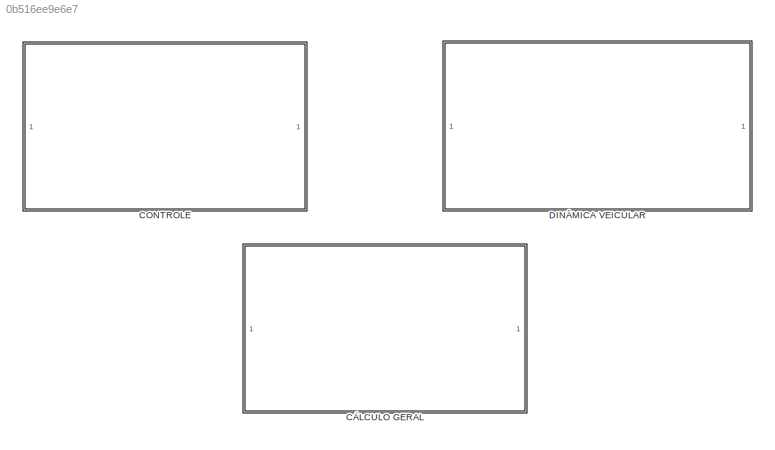
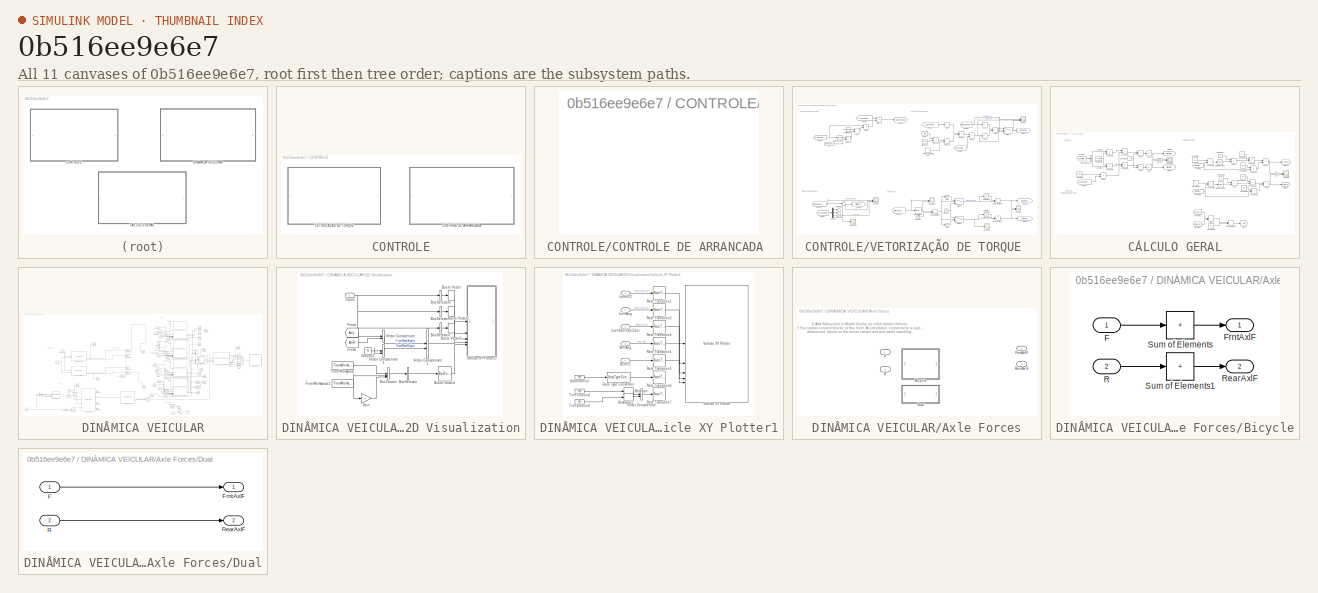
[diagram: thumbnail index - all 11 canvases of the model, root first then tree order]
MODEL slx_0b516ee9e6e7
KIND model
CONFIG AbsTol = auto
CONFIG EnableMultiTasking = off
CONFIG FixedStep = auto
CONFIG MaxStep = auto
CONFIG MinStep = auto
CONFIG RelTol = 1e-3
CONFIG SampleTimeConstraint = Unconstrained
CONFIG SolverName = VariableStepAuto
CONFIG StartTime = 0.0
CONFIG StopTime = 100
BLOCK [SubSystem] CONTROLE
BLOCK [SubSystem] CONTROLE/CONTROLE DE ARRANCADA 
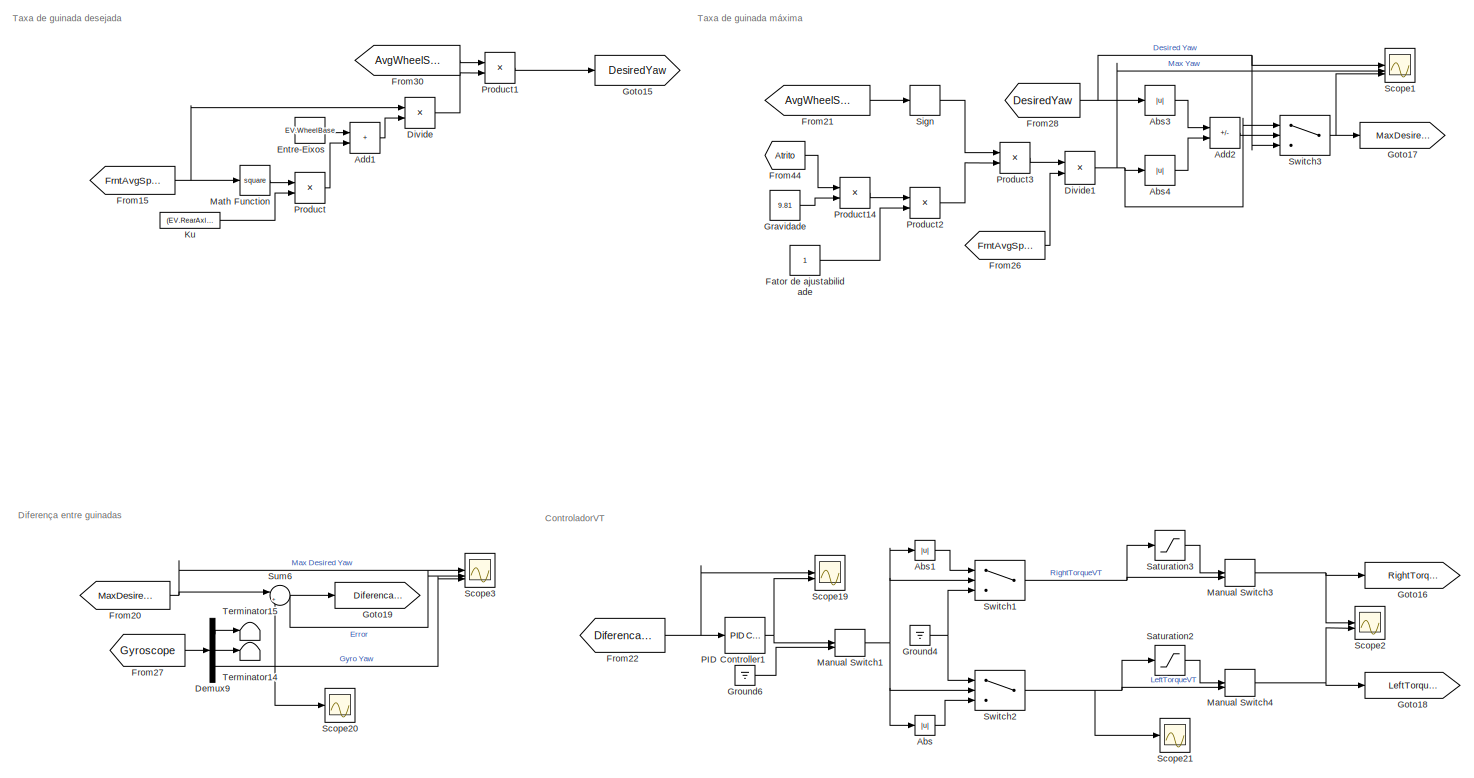
[diagram: CONTROLE/VETORIZAÇÃO DE TORQUE  - part 1/1, most of the canvas]
BLOCK [SubSystem] CONTROLE/VETORIZAÇÃO DE TORQUE 
BLOCK [Abs] CONTROLE/VETORIZAÇÃO DE TORQUE /Abs
  Commented = on
  SaturateOnIntegerOverflow = off
BLOCK [Abs] CONTROLE/VETORIZAÇÃO DE TORQUE /Abs1
  Commented = on
  SaturateOnIntegerOverflow = off
BLOCK [Abs] CONTROLE/VETORIZAÇÃO DE TORQUE /Abs3
  Commented = on
  SaturateOnIntegerOverflow = off
BLOCK [Abs] CONTROLE/VETORIZAÇÃO DE TORQUE /Abs4
  Commented = on
  SaturateOnIntegerOverflow = off
BLOCK [Sum] CONTROLE/VETORIZAÇÃO DE TORQUE /Add1
  Commented = on
  IconShape = rectangular
BLOCK [Sum] CONTROLE/VETORIZAÇÃO DE TORQUE /Add2
  Commented = on
  IconShape = rectangular
  Inputs = +-
BLOCK [Demux] CONTROLE/VETORIZAÇÃO DE TORQUE /Demux9
  Commented = on
  Outputs = 3
BLOCK [Product] CONTROLE/VETORIZAÇÃO DE TORQUE /Divide
  Commented = on
  Inputs = */
BLOCK [Product] CONTROLE/VETORIZAÇÃO DE TORQUE /Divide1
  Commented = on
  Inputs = */
BLOCK [Constant] CONTROLE/VETORIZAÇÃO DE TORQUE /Entre-Eixos
  Commented = on
  Value = EV.WheelBase
BLOCK [Constant] CONTROLE/VETORIZAÇÃO DE TORQUE /Fator de ajustabilidade
  Commented = on
  NameLocation = top
BLOCK [From] CONTROLE/VETORIZAÇÃO DE TORQUE /From15
  Commented = on
  GotoTag = FrntAvgSpeed
BLOCK [From] CONTROLE/VETORIZAÇÃO DE TORQUE /From20
  Commented = on
  GotoTag = MaxDesiredYaw
BLOCK [From] CONTROLE/VETORIZAÇÃO DE TORQUE /From21
  Commented = on
  GotoTag = AvgWheelSteer
BLOCK [From] CONTROLE/VETORIZAÇÃO DE TORQUE /From22
  Commented = on
  GotoTag = DiferencaYaws
BLOCK [From] CONTROLE/VETORIZAÇÃO DE TORQUE /From26
  Commented = on
  GotoTag = FrntAvgSpeed
BLOCK [From] CONTROLE/VETORIZAÇÃO DE TORQUE /From27
  Commented = on
  GotoTag = Gyroscope
BLOCK [From] CONTROLE/VETORIZAÇÃO DE TORQUE /From28
  Commented = on
  GotoTag = DesiredYaw
BLOCK [From] CONTROLE/VETORIZAÇÃO DE TORQUE /From30
  Commented = on
  GotoTag = AvgWheelSteer
BLOCK [From] CONTROLE/VETORIZAÇÃO DE TORQUE /From44
  Commented = on
  GotoTag = Atrito
BLOCK [Goto] CONTROLE/VETORIZAÇÃO DE TORQUE /Goto15
  Commented = on
  GotoTag = DesiredYaw
BLOCK [Goto] CONTROLE/VETORIZAÇÃO DE TORQUE /Goto16
  Commented = on
  GotoTag = RightTorqueVT
BLOCK [Goto] CONTROLE/VETORIZAÇÃO DE TORQUE /Goto17
  Commented = on
  GotoTag = MaxDesiredYaw
BLOCK [Goto] CONTROLE/VETORIZAÇÃO DE TORQUE /Goto18
  Commented = on
  GotoTag = LeftTorqueVT
BLOCK [Goto] CONTROLE/VETORIZAÇÃO DE TORQUE /Goto19
  Commented = on
  GotoTag = DiferencaYaws
BLOCK [Constant] CONTROLE/VETORIZAÇÃO DE TORQUE /Gravidade
  Commented = on
  NameLocation = top
  Value = 9.81
BLOCK [Ground] CONTROLE/VETORIZAÇÃO DE TORQUE /Ground4
  Commented = on
BLOCK [Ground] CONTROLE/VETORIZAÇÃO DE TORQUE /Ground6
  Commented = on
BLOCK [Constant] CONTROLE/VETORIZAÇÃO DE TORQUE /Ku
  Commented = on
  Value = (EV.RearAxlePositionfromCG*EV.Mass)/(EV.CornerStiffFront *EV.WheelBase)-(EV.FrontAxlePositionfromCG*EV.Mass)/(EV.CornerStiffRear*EV.WheelBase)
BLOCK [ManualSwitch] CONTROLE/VETORIZAÇÃO DE TORQUE /Manual Switch1
  Commented = on
BLOCK [ManualSwitch] CONTROLE/VETORIZAÇÃO DE TORQUE /Manual Switch3
  Commented = on
  CurrentSetting = 0
BLOCK [ManualSwitch] CONTROLE/VETORIZAÇÃO DE TORQUE /Manual Switch4
  Commented = on
  CurrentSetting = 0
BLOCK [Math] CONTROLE/VETORIZAÇÃO DE TORQUE /Math Function
  Commented = on
  Operator = square
BLOCK [Reference] CONTROLE/VETORIZAÇÃO DE TORQUE /PID Controller1  REF=slpidlib/PID Controller
  Commented = on
  SourceBlock = slpidlib/PID Controller
  SourceType = PID 1dof
BLOCK [Product] CONTROLE/VETORIZAÇÃO DE TORQUE /Product
  Commented = on
BLOCK [Product] CONTROLE/VETORIZAÇÃO DE TORQUE /Product1
  Commented = on
BLOCK [Product] CONTROLE/VETORIZAÇÃO DE TORQUE /Product14
  Commented = on
BLOCK [Product] CONTROLE/VETORIZAÇÃO DE TORQUE /Product2
  Commented = on
BLOCK [Product] CONTROLE/VETORIZAÇÃO DE TORQUE /Product3
  Commented = on
BLOCK [Saturate] CONTROLE/VETORIZAÇÃO DE TORQUE /Saturation2
  Commented = on
  LowerLimit = 0
  UpperLimit = 11.7
BLOCK [Saturate] CONTROLE/VETORIZAÇÃO DE TORQUE /Saturation3
  Commented = on
  LowerLimit = 0
  UpperLimit = 11.7
BLOCK [Scope] CONTROLE/VETORIZAÇÃO DE TORQUE /Scope1
  Commented = on
  Floating = off
  NumInputPorts = 3
  ScopeSpecificationString = Simulink.scopes.TimeScopeBlockCfg('CurrentConfiguration', extmgr.ConfigurationSet(extmgr.Configuration('Core','General UI',true),extmgr.Configuration('Core','Source UI',true),extmgr.Configuration('Sources','WiredSimulink',true,'DataLoggingVariableName','ScopeData1'),extmgr.Configuration('Visuals','Time Domain',true,'SerializedDisplays',{struct('MinYLimReal','-1.7533','MaxYLimReal','0.19481','YLabe...<+1483ch>
BLOCK [Scope] CONTROLE/VETORIZAÇÃO DE TORQUE /Scope19
  Commented = on
  Floating = off
  NumInputPorts = 2
  ScopeSpecificationString = Simulink.scopes.TimeScopeBlockCfg('CurrentConfiguration', extmgr.ConfigurationSet(extmgr.Configuration('Core','General UI',true),extmgr.Configuration('Core','Source UI',true),extmgr.Configuration('Sources','WiredSimulink',true,'DataLoggingVariableName','ScopeData4','DataLoggingSaveFormat','Array'),extmgr.Configuration('Visuals','Time Domain',true,'SerializedDisplays',{struct('MinYLimReal','-41.203...<+1540ch>
BLOCK [Scope] CONTROLE/VETORIZAÇÃO DE TORQUE /Scope2
  Commented = on
  Floating = off
  NumInputPorts = 2
  ScopeSpecificationString = Simulink.scopes.TimeScopeBlockCfg('CurrentConfiguration', extmgr.ConfigurationSet(extmgr.Configuration('Core','General UI',true),extmgr.Configuration('Core','Source UI',true),extmgr.Configuration('Sources','WiredSimulink',true,'DataLoggingVariableName','ScopeData5'),extmgr.Configuration('Visuals','Time Domain',true,'SerializedDisplays',{struct('MinYLimReal','-100828941240.88097','MaxYLimReal','907...<+1507ch>
BLOCK [Scope] CONTROLE/VETORIZAÇÃO DE TORQUE /Scope20
  Commented = on
  Floating = off
  NumInputPorts = 1
  ScopeSpecificationString = Simulink.scopes.TimeScopeBlockCfg('CurrentConfiguration', extmgr.ConfigurationSet(extmgr.Configuration('Core','General UI',true),extmgr.Configuration('Core','Source UI',true),extmgr.Configuration('Sources','WiredSimulink',true,'DataLoggingVariableName','ScopeData2','DataLogging',true,'DataLoggingSaveFormat','Array'),extmgr.Configuration('Visuals','Time Domain',true,'SerializedDisplays',{struct('Mi...<+1471ch>
BLOCK [Scope] CONTROLE/VETORIZAÇÃO DE TORQUE /Scope21
  Commented = on
  Floating = off
  NumInputPorts = 1
  ScopeSpecificationString = Simulink.scopes.TimeScopeBlockCfg('CurrentConfiguration', extmgr.ConfigurationSet(extmgr.Configuration('Core','General UI',true),extmgr.Configuration('Core','Source UI',true),extmgr.Configuration('Sources','WiredSimulink',true,'DataLoggingVariableName','ScopeData6','DataLogging',true,'DataLoggingSaveFormat','Array'),extmgr.Configuration('Visuals','Time Domain',true,'SerializedDisplays',{struct('Mi...<+1508ch>
BLOCK [Scope] CONTROLE/VETORIZAÇÃO DE TORQUE /Scope3
  Commented = on
  Floating = off
  NumInputPorts = 3
  ScopeSpecificationString = Simulink.scopes.TimeScopeBlockCfg('CurrentConfiguration', extmgr.ConfigurationSet(extmgr.Configuration('Core','General UI',true,'FigureColor',[1 1 1]),extmgr.Configuration('Core','Source UI',true),extmgr.Configuration('Sources','WiredSimulink',true,'DataLoggingVariableName','ScopeData3'),extmgr.Configuration('Visuals','Time Domain',true,'SerializedDisplays',{struct('MinYLimReal','-2.27941','MaxYLi...<+1623ch>
BLOCK [Signum] CONTROLE/VETORIZAÇÃO DE TORQUE /Sign
  Commented = on
BLOCK [Sum] CONTROLE/VETORIZAÇÃO DE TORQUE /Sum6
  Commented = on
  Inputs = |+-
BLOCK [Switch] CONTROLE/VETORIZAÇÃO DE TORQUE /Switch1
  Commented = on
  Criteria = u2 > Threshold
  InputSameDT = off
  SaturateOnIntegerOverflow = off
BLOCK [Switch] CONTROLE/VETORIZAÇÃO DE TORQUE /Switch2
  Commented = on
  InputSameDT = off
  SaturateOnIntegerOverflow = off
BLOCK [Switch] CONTROLE/VETORIZAÇÃO DE TORQUE /Switch3
  Commented = on
  Criteria = u2 > Threshold
  InputSameDT = off
  SaturateOnIntegerOverflow = off
BLOCK [Terminator] CONTROLE/VETORIZAÇÃO DE TORQUE /Terminator14
  Commented = on
BLOCK [Terminator] CONTROLE/VETORIZAÇÃO DE TORQUE /Terminator15
  Commented = on
BLOCK [SubSystem] CÁLCULO GERAL
BLOCK [Abs] CÁLCULO GERAL/Abs2
  Commented = on
  SaturateOnIntegerOverflow = off
BLOCK [Abs] CÁLCULO GERAL/Abs5
  Commented = on
  SaturateOnIntegerOverflow = off
BLOCK [Sum] CÁLCULO GERAL/Add3
  Commented = on
  IconShape = rectangular
  Inputs = +-
BLOCK [Sum] CÁLCULO GERAL/Add4
  Commented = on
  IconShape = rectangular
  Inputs = +-
BLOCK [Sum] CÁLCULO GERAL/Add5
  Commented = on
  IconShape = rectangular
  Inputs = +-
BLOCK [Sum] CÁLCULO GERAL/Add6
  Commented = on
  IconShape = rectangular
  Inputs = +-
BLOCK [Sum] CÁLCULO GERAL/Add7
  Commented = on
  IconShape = rectangular
  Inputs = +-
BLOCK [Sum] CÁLCULO GERAL/Add8
  Commented = on
  IconShape = rectangular
  Inputs = +-
BLOCK [BusSelector] CÁLCULO GERAL/Bus Selector21
  Commented = on
  OutputSignals = LeftMtrSpd,RghtMtrSpd
BLOCK [Constant] CÁLCULO GERAL/Constant10
  Commented = on
  Value = C3
BLOCK [Constant] CÁLCULO GERAL/Constant17
  Commented = on
BLOCK [Constant] CÁLCULO GERAL/Constant18
  Commented = on
  Value = C3
BLOCK [Constant] CÁLCULO GERAL/Constant19
  Commented = on
BLOCK [Constant] CÁLCULO GERAL/Constant20
  Commented = on
  Value = C1
BLOCK [Constant] CÁLCULO GERAL/Constant23
  Commented = on
  Value = -C2
BLOCK [Constant] CÁLCULO GERAL/Constant24
  Commented = on
  Value = 1.3
BLOCK [Constant] CÁLCULO GERAL/Constant4
  Commented = on
  Value = 2*pi/60
BLOCK [Constant] CÁLCULO GERAL/Constant5
  Commented = on
  Value = 0.2566
BLOCK [Constant] CÁLCULO GERAL/Constant6
  Commented = on
BLOCK [Constant] CÁLCULO GERAL/Constant7
  Commented = on
  Value = C1
BLOCK [Constant] CÁLCULO GERAL/Constant8
  Commented = on
  Value = -C2
BLOCK [Product] CÁLCULO GERAL/Divide2
  Commented = on
  Inputs = */
BLOCK [From] CÁLCULO GERAL/From32
  Commented = on
  GotoTag = Driveline
BLOCK [From] CÁLCULO GERAL/From37
  Commented = on
  GotoTag = FrntAvgSpeed
BLOCK [From] CÁLCULO GERAL/From38
  Commented = on
  GotoTag = Atrito_L
BLOCK [From] CÁLCULO GERAL/From39
  Commented = on
  GotoTag = SlipRatio_L
BLOCK [From] CÁLCULO GERAL/From40
  Commented = on
  GotoTag = SlipRatio_R
BLOCK [From] CÁLCULO GERAL/From41
  Commented = on
  GotoTag = Atrito_R
BLOCK [Goto] CÁLCULO GERAL/Goto24
  Commented = on
  GotoTag = SlipRatio_L
BLOCK [Goto] CÁLCULO GERAL/Goto25
  Commented = on
  GotoTag = SlipRatio_R
BLOCK [Goto] CÁLCULO GERAL/Goto26
  Commented = on
  GotoTag = Atrito_L
BLOCK [Goto] CÁLCULO GERAL/Goto27
  Commented = on
  GotoTag = Atrito_R
BLOCK [Goto] CÁLCULO GERAL/Goto28
  Commented = on
  GotoTag = Atrito
BLOCK [ManualSwitch] CÁLCULO GERAL/Manual Switch2
  Commented = on
  CurrentSetting = 0
BLOCK [Math] CÁLCULO GERAL/Math Function1
  Commented = on
BLOCK [Math] CÁLCULO GERAL/Math Function2
  Commented = on
BLOCK [MinMax] CÁLCULO GERAL/Min1
  Commented = on
  Inputs = 2
BLOCK [Product] CÁLCULO GERAL/Product10
  Commented = on
BLOCK [Product] CÁLCULO GERAL/Product11
  Commented = on
BLOCK [Product] CÁLCULO GERAL/Product12
  Commented = on
BLOCK [Product] CÁLCULO GERAL/Product13
  Commented = on
BLOCK [Product] CÁLCULO GERAL/Product4
  Commented = on
BLOCK [Product] CÁLCULO GERAL/Product5
  Commented = on
BLOCK [Product] CÁLCULO GERAL/Product6
  Commented = on
BLOCK [Product] CÁLCULO GERAL/Product7
  Commented = on
BLOCK [Product] CÁLCULO GERAL/Product8
  Commented = on
BLOCK [Product] CÁLCULO GERAL/Product9
  Commented = on
BLOCK [Scope] CÁLCULO GERAL/Scope18
  Commented = on
  Floating = off
  NumInputPorts = 2
  ScopeSpecificationString = Simulink.scopes.TimeScopeBlockCfg('CurrentConfiguration', extmgr.ConfigurationSet(extmgr.Configuration('Core','General UI',true),extmgr.Configuration('Core','Source UI',true),extmgr.Configuration('Sources','WiredSimulink',true,'DataLoggingVariableName','ScopeData7'),extmgr.Configuration('Visuals','Time Domain',true,'SerializedDisplays',{struct('MinYLimReal','-0.01332','MaxYLimReal','0.12067','YLab...<+1460ch>
BLOCK [Scope] CÁLCULO GERAL/Scope9
  Commented = on
  Floating = off
  NumInputPorts = 2
  ScopeSpecificationString = Simulink.scopes.TimeScopeBlockCfg('CurrentConfiguration', extmgr.ConfigurationSet(extmgr.Configuration('Core','General UI',true),extmgr.Configuration('Core','Source UI',true),extmgr.Configuration('Sources','WiredSimulink',true,'DataLoggingVariableName','ScopeData8'),extmgr.Configuration('Visuals','Time Domain',true,'SerializedDisplays',{struct('MinYLimReal','-0.13806','MaxYLimReal','1.26722','YLab...<+1454ch>
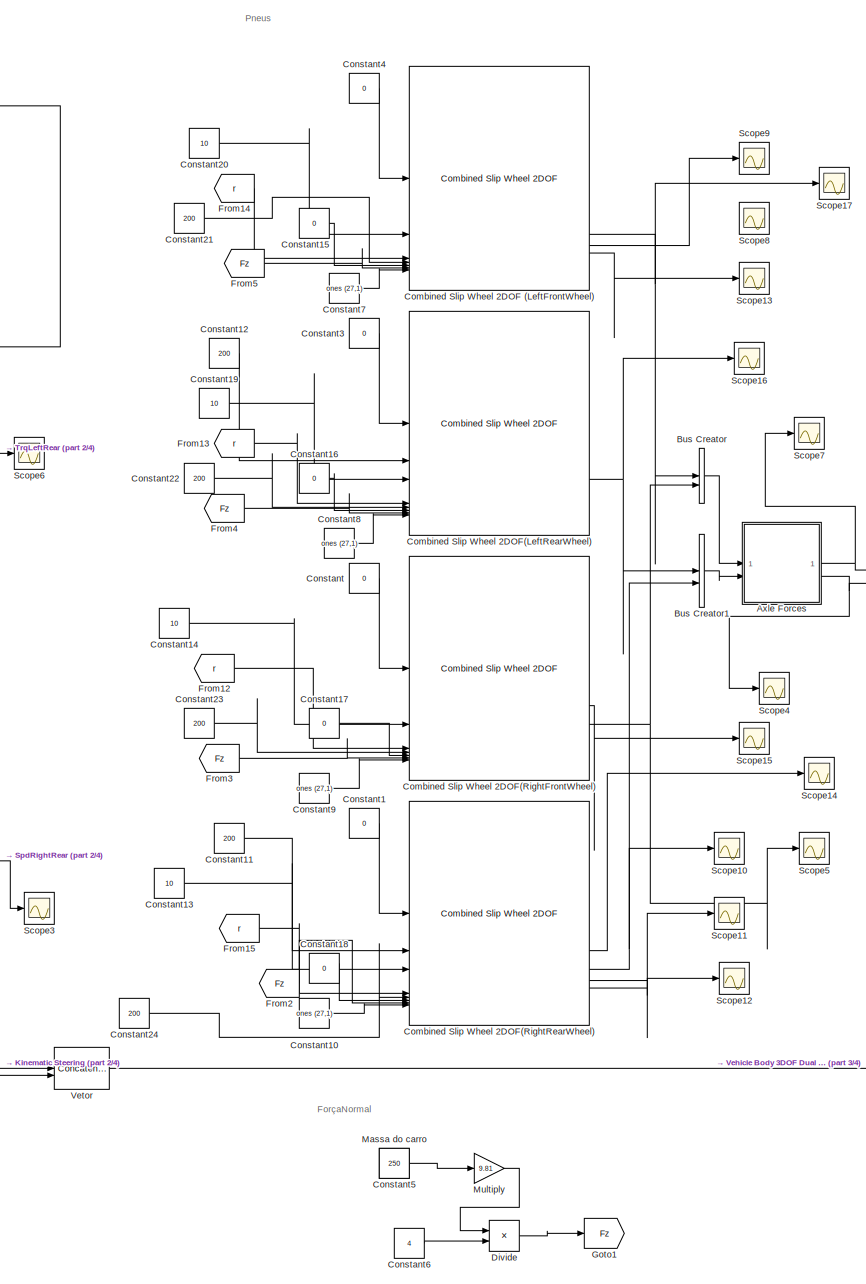
[diagram: DINÂMICA VEICULAR - part 1/4, center side, full height]
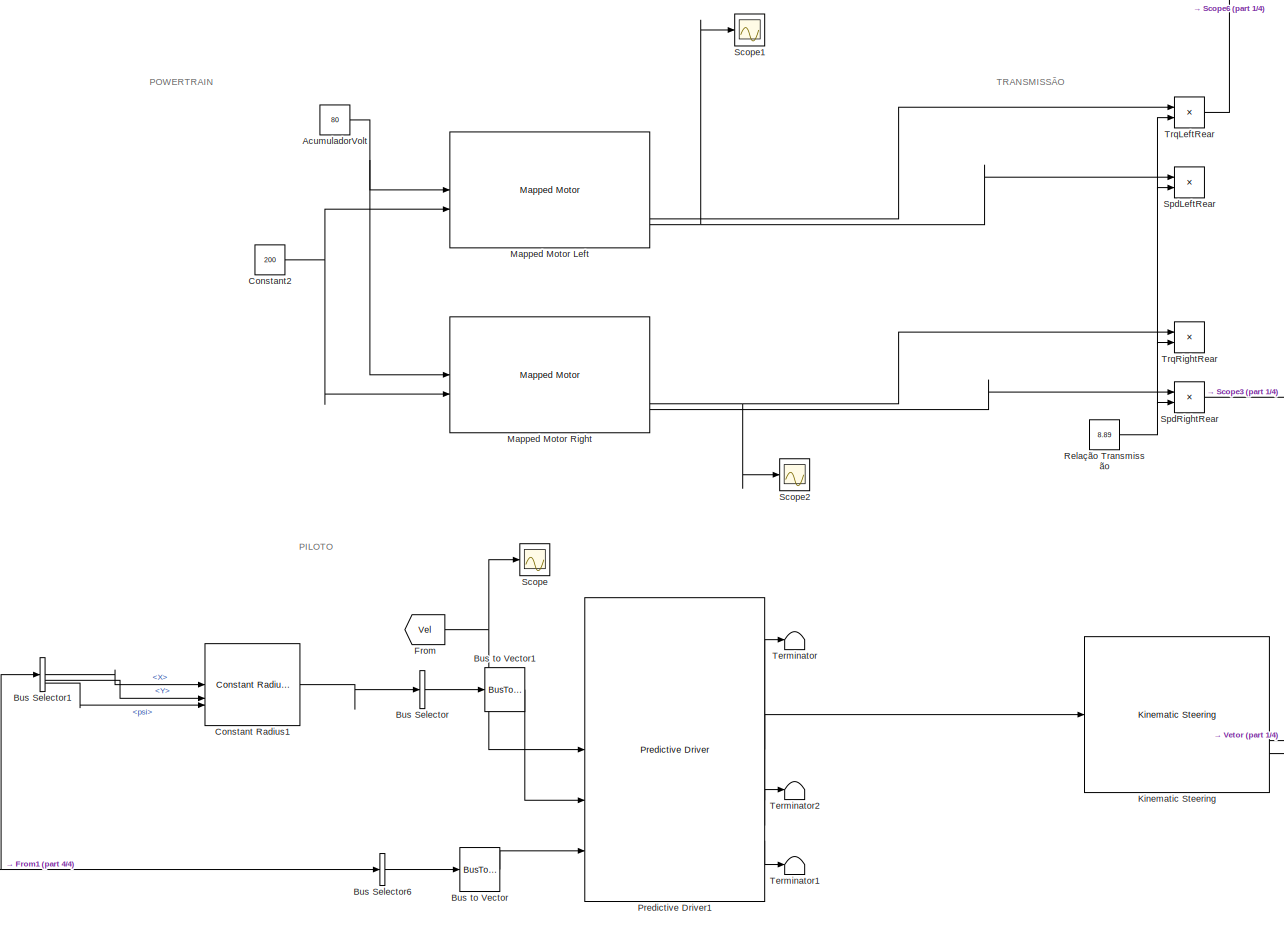
[diagram: DINÂMICA VEICULAR - part 2/4, middle left region]
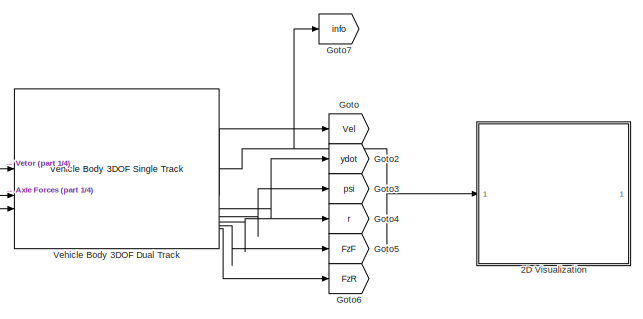
[diagram: DINÂMICA VEICULAR - part 3/4, middle right region]
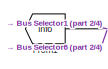
[diagram: DINÂMICA VEICULAR - part 4/4, bottom left region]
BLOCK [SubSystem] DINÂMICA VEICULAR
BLOCK [SubSystem] DINÂMICA VEICULAR/2D Visualization
BLOCK [BusCreator] DINÂMICA VEICULAR/2D Visualization/Bus Creator
  Commented = on
  DisplayOption = bar
  InheritFromInputs = on
  Inputs = 3
BLOCK [BusSelector] DINÂMICA VEICULAR/2D Visualization/Bus Selector
  Commented = on
  OutputAsBus = on
  OutputSignals = signal1,signal2,signal3
BLOCK [BusSelector] DINÂMICA VEICULAR/2D Visualization/Bus Selector1
  OutputAsBus = on
  OutputSignals = InertFrm.Cg.Ang.phi,InertFrm.Cg.Ang.theta,InertFrm.Cg.Ang.psi
BLOCK [BusSelector] DINÂMICA VEICULAR/2D Visualization/Bus Selector6
  OutputAsBus = on
  OutputSignals = InertFrm.Geom.Disp.X,InertFrm.Geom.Disp.Y,InertFrm.Geom.Disp.Z
BLOCK [BusSelector] DINÂMICA VEICULAR/2D Visualization/Bus Selector7
  OutputAsBus = on
  OutputSignals = InertFrm.Geom.Vel.Xdot,InertFrm.Geom.Vel.Ydot,InertFrm.Geom.Vel.Zdot
BLOCK [BusToVector] DINÂMICA VEICULAR/2D Visualization/Bus to Vector
BLOCK [BusToVector] DINÂMICA VEICULAR/2D Visualization/Bus to Vector1
BLOCK [BusToVector] DINÂMICA VEICULAR/2D Visualization/Bus to Vector2
BLOCK [BusToVector] DINÂMICA VEICULAR/2D Visualization/Bus to Vector4
  Commented = on
BLOCK [FromWorkspace] DINÂMICA VEICULAR/2D Visualization/From Workspace
  Commented = on
  VariableName = [tRef xRef]
BLOCK [FromWorkspace] DINÂMICA VEICULAR/2D Visualization/From Workspace1
  Commented = on
  VariableName = [tRef yRef]
BLOCK [From] DINÂMICA VEICULAR/2D Visualization/From1
  GotoTag = AnL
BLOCK [From] DINÂMICA VEICULAR/2D Visualization/From2
  GotoTag = AnR
BLOCK [Gain] DINÂMICA VEICULAR/2D Visualization/Gain
  Commented = on
  Gain = 0
BLOCK [Ground] DINÂMICA VEICULAR/2D Visualization/Ground3
BLOCK [Inport] DINÂMICA VEICULAR/2D Visualization/Inport
BLOCK [Concatenate] DINÂMICA VEICULAR/2D Visualization/Vector Concatenate
BLOCK [Concatenate] DINÂMICA VEICULAR/2D Visualization/Vector Concatenate1
BLOCK [Concatenate] DINÂMICA VEICULAR/2D Visualization/Vector Concatenate2
BLOCK [SubSystem] DINÂMICA VEICULAR/2D Visualization/Vehicle XY Plotter1
BLOCK [DataTypeConversion] DINÂMICA VEICULAR/2D Visualization/Vehicle XY Plotter1/Data Type Conversion
  OutDataTypeStr = double
  RndMeth = Floor
  SaturateOnIntegerOverflow = off
BLOCK [Inport] DINÂMICA VEICULAR/2D Visualization/Vehicle XY Plotter1/InertAng
  Port = 2
BLOCK [Inport] DINÂMICA VEICULAR/2D Visualization/Vehicle XY Plotter1/InertXYZ
BLOCK [Inport] DINÂMICA VEICULAR/2D Visualization/Vehicle XY Plotter1/InertXdotYdotZdot
  Port = 3
BLOCK [RateTransition] DINÂMICA VEICULAR/2D Visualization/Vehicle XY Plotter1/Rate Transition1
  Deterministic = off
  OutPortSampleTime = pltDT
BLOCK [RateTransition] DINÂMICA VEICULAR/2D Visualization/Vehicle XY Plotter1/Rate Transition2
  Deterministic = off
  OutPortSampleTime = pltDT
BLOCK [RateTransition] DINÂMICA VEICULAR/2D Visualization/Vehicle XY Plotter1/Rate Transition3
  Deterministic = off
  OutPortSampleTime = pltDT
BLOCK [RateTransition] DINÂMICA VEICULAR/2D Visualization/Vehicle XY Plotter1/Rate Transition4
  Deterministic = off
  OutPortSampleTime = pltDT
BLOCK [RateTransition] DINÂMICA VEICULAR/2D Visualization/Vehicle XY Plotter1/Rate Transition5
  Deterministic = off
  OutPortSampleTime = pltDT
BLOCK [RateTransition] DINÂMICA VEICULAR/2D Visualization/Vehicle XY Plotter1/Rate Transition6
  Deterministic = off
  OutPortSampleTime = pltDT
BLOCK [RateTransition] DINÂMICA VEICULAR/2D Visualization/Vehicle XY Plotter1/Rate Transition7
  Deterministic = off
  OutPortSampleTime = pltDT
BLOCK [Inport] DINÂMICA VEICULAR/2D Visualization/Vehicle XY Plotter1/RefXYZ
  Port = 5
BLOCK [Reshape] DINÂMICA VEICULAR/2D Visualization/Vehicle XY Plotter1/Reshape
  OutputDimensionality = Row vector (2-D)
BLOCK [Reshape] DINÂMICA VEICULAR/2D Visualization/Vehicle XY Plotter1/Reshape1
  OutputDimensionality = Row vector (2-D)
BLOCK [Ground] DINÂMICA VEICULAR/2D Visualization/Vehicle XY Plotter1/Stats Ground
BLOCK [Ground] DINÂMICA VEICULAR/2D Visualization/Vehicle XY Plotter1/TireFx Ground
BLOCK [Ground] DINÂMICA VEICULAR/2D Visualization/Vehicle XY Plotter1/TireFy Ground
BLOCK [Concatenate] DINÂMICA VEICULAR/2D Visualization/Vehicle XY Plotter1/Vector Concatenate
  Mode = Multidimensional array
BLOCK [Reference] DINÂMICA VEICULAR/2D Visualization/Vehicle XY Plotter1/Vehicle XY Plotter  REF=vehdynlibviscommon/Vehicle XY Plotter
  SourceBlock = vehdynlibviscommon/Vehicle XY Plotter
  SourceType = Vehicle XY Plotter
BLOCK [Inport] DINÂMICA VEICULAR/2D Visualization/Vehicle XY Plotter1/WhlAng
  Port = 4
BLOCK [Constant] DINÂMICA VEICULAR/AcumuladorVolt
  Value = 80
BLOCK [SubSystem] DINÂMICA VEICULAR/Axle Forces
  LabelModeActiveChoice = 1
  Variant = on
  VariantControlMode = label
BLOCK [SubSystem] DINÂMICA VEICULAR/Axle Forces/Bicycle
  VariantControl = 0
BLOCK [Inport] DINÂMICA VEICULAR/Axle Forces/Bicycle/F
BLOCK [Outport] DINÂMICA VEICULAR/Axle Forces/Bicycle/FrntAxlF
  Unit = N
  VectorParamsAs1DForOutWhenUnconnected = off
BLOCK [Inport] DINÂMICA VEICULAR/Axle Forces/Bicycle/R
  Port = 2
BLOCK [Outport] DINÂMICA VEICULAR/Axle Forces/Bicycle/RearAxlF
  Port = 2
  Unit = N
  VectorParamsAs1DForOutWhenUnconnected = off
BLOCK [Sum] DINÂMICA VEICULAR/Axle Forces/Bicycle/Sum of Elements
  IconShape = rectangular
  Inputs = +
BLOCK [Sum] DINÂMICA VEICULAR/Axle Forces/Bicycle/Sum of Elements1
  IconShape = rectangular
  Inputs = +
BLOCK [SubSystem] DINÂMICA VEICULAR/Axle Forces/Dual
  VariantControl = 1
BLOCK [Inport] DINÂMICA VEICULAR/Axle Forces/Dual/F
BLOCK [Outport] DINÂMICA VEICULAR/Axle Forces/Dual/FrntAxlF
  Unit = N
  VectorParamsAs1DForOutWhenUnconnected = off
BLOCK [Inport] DINÂMICA VEICULAR/Axle Forces/Dual/R
  Port = 2
BLOCK [Outport] DINÂMICA VEICULAR/Axle Forces/Dual/RearAxlF
  Port = 2
  Unit = N
  VectorParamsAs1DForOutWhenUnconnected = off
BLOCK [Inport] DINÂMICA VEICULAR/Axle Forces/F
BLOCK [Outport] DINÂMICA VEICULAR/Axle Forces/FrntAxlF
  Unit = N
  VectorParamsAs1DForOutWhenUnconnected = off
BLOCK [Inport] DINÂMICA VEICULAR/Axle Forces/R
  Port = 2
BLOCK [Outport] DINÂMICA VEICULAR/Axle Forces/RearAxlF
  Port = 2
  Unit = N
  VectorParamsAs1DForOutWhenUnconnected = off
BLOCK [BusCreator] DINÂMICA VEICULAR/Bus Creator
  DisplayOption = bar
  InheritFromInputs = on
  Inputs = 2
BLOCK [BusCreator] DINÂMICA VEICULAR/Bus Creator1
  DisplayOption = bar
  InheritFromInputs = on
  Inputs = 2
BLOCK [BusSelector] DINÂMICA VEICULAR/Bus Selector
  OutputAsBus = on
  OutputSignals = XRef,YRef,PhiRef
BLOCK [BusSelector] DINÂMICA VEICULAR/Bus Selector1
  OutputSignals = InertFrm.Cg.Disp.X,InertFrm.Cg.Disp.Y,InertFrm.Cg.Ang.psi
BLOCK [BusSelector] DINÂMICA VEICULAR/Bus Selector6
  OutputAsBus = on
  OutputSignals = InertFrm.Cg.Disp.X,InertFrm.Cg.Disp.Y,InertFrm.Cg.Disp.Z
BLOCK [BusToVector] DINÂMICA VEICULAR/Bus to Vector
BLOCK [BusToVector] DINÂMICA VEICULAR/Bus to Vector1
BLOCK [Reference] DINÂMICA VEICULAR/Combined Slip Wheel 2DOF (LeftFrontWheel)  REF=vehdynlibtire/Combined Slip Wheel 2DOF
  SourceBlock = vehdynlibtire/Combined Slip Wheel 2DOF
  SourceType = Combined Slip Wheel 2DOF
BLOCK [Reference] DINÂMICA VEICULAR/Combined Slip Wheel 2DOF(LeftRearWheel)  REF=vehdynlibtire/Combined Slip Wheel 2DOF
  SourceBlock = vehdynlibtire/Combined Slip Wheel 2DOF
  SourceType = Combined Slip Wheel 2DOF
BLOCK [Reference] DINÂMICA VEICULAR/Combined Slip Wheel 2DOF(RightFrontWheel)  REF=vehdynlibtire/Combined Slip Wheel 2DOF
  SourceBlock = vehdynlibtire/Combined Slip Wheel 2DOF
  SourceType = Combined Slip Wheel 2DOF
BLOCK [Reference] DINÂMICA VEICULAR/Combined Slip Wheel 2DOF(RightRearWheel)  REF=vehdynlibtire/Combined Slip Wheel 2DOF
  SourceBlock = vehdynlibtire/Combined Slip Wheel 2DOF
  SourceType = Combined Slip Wheel 2DOF
BLOCK [Constant] DINÂMICA VEICULAR/Constant
  Value = 0
BLOCK [Reference] DINÂMICA VEICULAR/Constant Radius1  REF=vehdynlibscenariocommon/Constant Radius Signal Input
  LibrarySourceBlock = vehdynlibscenario/Constant Radius
  SourceBlock = vehdynlibscenariocommon/Constant Radius Signal Input
  SourceType = Constant Radius
BLOCK [Constant] DINÂMICA VEICULAR/Constant1
  Value = 0
BLOCK [Constant] DINÂMICA VEICULAR/Constant10
  Value = ones (27,1)
BLOCK [Constant] DINÂMICA VEICULAR/Constant11
  Value = 200
BLOCK [Constant] DINÂMICA VEICULAR/Constant12
  Value = 200
BLOCK [Constant] DINÂMICA VEICULAR/Constant13
  Value = 10
BLOCK [Constant] DINÂMICA VEICULAR/Constant14
  Value = 10
BLOCK [Constant] DINÂMICA VEICULAR/Constant15
  Value = 0
BLOCK [Constant] DINÂMICA VEICULAR/Constant16
  Value = 0
BLOCK [Constant] DINÂMICA VEICULAR/Constant17
  Value = 0
BLOCK [Constant] DINÂMICA VEICULAR/Constant18
  Value = 0
BLOCK [Constant] DINÂMICA VEICULAR/Constant19
  Value = 10
BLOCK [Constant] DINÂMICA VEICULAR/Constant2
  Value = 200
BLOCK [Constant] DINÂMICA VEICULAR/Constant20
  Value = 10
BLOCK [Constant] DINÂMICA VEICULAR/Constant21
  Value = 200
BLOCK [Constant] DINÂMICA VEICULAR/Constant22
  Value = 200
BLOCK [Constant] DINÂMICA VEICULAR/Constant23
  Value = 200
BLOCK [Constant] DINÂMICA VEICULAR/Constant24
  Value = 200
BLOCK [Constant] DINÂMICA VEICULAR/Constant3
  Value = 0
BLOCK [Constant] DINÂMICA VEICULAR/Constant4
  Value = 0
BLOCK [Constant] DINÂMICA VEICULAR/Constant5
  Value = 300
BLOCK [Constant] DINÂMICA VEICULAR/Constant6
  Value = 4
BLOCK [Constant] DINÂMICA VEICULAR/Constant7
  Value = ones (27,1)
BLOCK [Constant] DINÂMICA VEICULAR/Constant8
  Value = ones (27,1)
BLOCK [Constant] DINÂMICA VEICULAR/Constant9
  Value = ones (27,1)
BLOCK [Product] DINÂMICA VEICULAR/Divide
  Inputs = */
BLOCK [From] DINÂMICA VEICULAR/From
  GotoTag = Vel
BLOCK [From] DINÂMICA VEICULAR/From1
  GotoTag = info
BLOCK [From] DINÂMICA VEICULAR/From12
  GotoTag = r
BLOCK [From] DINÂMICA VEICULAR/From13
  GotoTag = r
BLOCK [From] DINÂMICA VEICULAR/From14
  GotoTag = r
BLOCK [From] DINÂMICA VEICULAR/From15
  GotoTag = r
BLOCK [From] DINÂMICA VEICULAR/From2
  GotoTag = Fz
BLOCK [From] DINÂMICA VEICULAR/From3
  GotoTag = Fz
BLOCK [From] DINÂMICA VEICULAR/From4
  GotoTag = Fz
BLOCK [From] DINÂMICA VEICULAR/From5
  GotoTag = Fz
BLOCK [Goto] DINÂMICA VEICULAR/Goto
  GotoTag = Vel
BLOCK [Goto] DINÂMICA VEICULAR/Goto1
  GotoTag = Fz
BLOCK [Goto] DINÂMICA VEICULAR/Goto2
  GotoTag = ydot
BLOCK [Goto] DINÂMICA VEICULAR/Goto3
  GotoTag = psi
BLOCK [Goto] DINÂMICA VEICULAR/Goto4
  GotoTag = r
BLOCK [Goto] DINÂMICA VEICULAR/Goto5
  GotoTag = FzF
BLOCK [Goto] DINÂMICA VEICULAR/Goto6
  GotoTag = FzR
BLOCK [Goto] DINÂMICA VEICULAR/Goto7
  GotoTag = info
BLOCK [Reference] DINÂMICA VEICULAR/Kinematic Steering  REF=vehdynlibsteering/Kinematic Steering
  SourceBlock = vehdynlibsteering/Kinematic Steering
  SourceType = Kinematic Steering
BLOCK [Reference] DINÂMICA VEICULAR/Mapped Motor Left  REF=autolibmappedmotor/Mapped Motor
  LibrarySourceBlock = vdynlib/Powertrain/Propulsion/Mapped Motor
  SourceBlock = autolibmappedmotor/Mapped Motor
  SourceType = MappedMotor
BLOCK [Reference] DINÂMICA VEICULAR/Mapped Motor Right  REF=autolibmappedmotor/Mapped Motor
  LibrarySourceBlock = vdynlib/Powertrain/Propulsion/Mapped Motor
  SourceBlock = autolibmappedmotor/Mapped Motor
  SourceType = MappedMotor
BLOCK [Constant] DINÂMICA VEICULAR/Massa do carro
  Value = 250
BLOCK [Gain] DINÂMICA VEICULAR/Multiply
  Gain = 9.81
BLOCK [Reference] DINÂMICA VEICULAR/Predictive Driver1  REF=vehdynlibdriver/Predictive Driver
  SourceBlock = vehdynlibdriver/Predictive Driver
  SourceType = Predictive Driver
BLOCK [Constant] DINÂMICA VEICULAR/Relação Transmissão
  Value = 8.89
BLOCK [Scope] DINÂMICA VEICULAR/Scope
  Floating = off
  NumInputPorts = 1
  ScopeSpecificationString = Simulink.scopes.TimeScopeBlockCfg('CurrentConfiguration', extmgr.ConfigurationSet(extmgr.Configuration('Core','General UI',true),extmgr.Configuration('Core','Source UI',true),extmgr.Configuration('Sources','WiredSimulink',true),extmgr.Configuration('Visuals','Time Domain',true,'SerializedDisplays',{struct('MinYLimReal','-1.00000','MaxYLimReal','1.00000','YLabelReal','','MinYLimMag','0.00000','MaxY...<+1428ch>
BLOCK [Scope] DINÂMICA VEICULAR/Scope1
  Floating = off
  NumInputPorts = 1
  ScopeSpecificationString = Simulink.scopes.TimeScopeBlockCfg('CurrentConfiguration', extmgr.ConfigurationSet(extmgr.Configuration('Core','General UI',true),extmgr.Configuration('Core','Source UI',true),extmgr.Configuration('Sources','WiredSimulink',true,'DataLoggingVariableName','ScopeData1'),extmgr.Configuration('Visuals','Time Domain',true,'SerializedDisplays',{struct('MinYLimReal','-380927.5072','MaxYLimReal','3428347.56...<+1509ch>
BLOCK [Scope] DINÂMICA VEICULAR/Scope10
  Floating = off
  NumInputPorts = 1
  ScopeSpecificationString = Simulink.scopes.TimeScopeBlockCfg('CurrentConfiguration', extmgr.ConfigurationSet(extmgr.Configuration('Core','General UI',true),extmgr.Configuration('Core','Source UI',true),extmgr.Configuration('Sources','WiredSimulink',true,'DataLoggingVariableName','ScopeData3'),extmgr.Configuration('Visuals','Time Domain',true,'SerializedDisplays',{struct('MinYLimReal','-1031.16745','MaxYLimReal','892.84884',...<+1537ch>
BLOCK [Scope] DINÂMICA VEICULAR/Scope11
  Floating = off
  NumInputPorts = 1
  ScopeSpecificationString = Simulink.scopes.TimeScopeBlockCfg('CurrentConfiguration', extmgr.ConfigurationSet(extmgr.Configuration('Core','General UI',true),extmgr.Configuration('Core','Source UI',true),extmgr.Configuration('Sources','WiredSimulink',true,'DataLoggingVariableName','ScopeData4'),extmgr.Configuration('Visuals','Time Domain',true,'SerializedDisplays',{struct('MinYLimReal','-1.00000','MaxYLimReal','1.00000','YLab...<+1448ch>
BLOCK [Scope] DINÂMICA VEICULAR/Scope12
  Floating = off
  NumInputPorts = 1
  ScopeSpecificationString = Simulink.scopes.TimeScopeBlockCfg('CurrentConfiguration', extmgr.ConfigurationSet(extmgr.Configuration('Core','General UI',true),extmgr.Configuration('Core','Source UI',true),extmgr.Configuration('Sources','WiredSimulink',true,'DataLoggingVariableName','ScopeData5'),extmgr.Configuration('Visuals','Time Domain',true,'SerializedDisplays',{struct('MinYLimReal','513.125','MaxYLimReal','713.125','YLabe...<+1524ch>
BLOCK [Scope] DINÂMICA VEICULAR/Scope13
  Floating = off
  NumInputPorts = 1
  ScopeSpecificationString = Simulink.scopes.TimeScopeBlockCfg('CurrentConfiguration', extmgr.ConfigurationSet(extmgr.Configuration('Core','General UI',true),extmgr.Configuration('Core','Source UI',true),extmgr.Configuration('Sources','WiredSimulink',true,'DataLoggingVariableName','ScopeData6'),extmgr.Configuration('Visuals','Time Domain',true,'SerializedDisplays',{struct('MinYLimReal','513.125','MaxYLimReal','713.125','YLabe...<+1551ch>
BLOCK [Scope] DINÂMICA VEICULAR/Scope14
  Floating = off
  NumInputPorts = 1
  ScopeSpecificationString = Simulink.scopes.TimeScopeBlockCfg('CurrentConfiguration', extmgr.ConfigurationSet(extmgr.Configuration('Core','General UI',true),extmgr.Configuration('Core','Source UI',true),extmgr.Configuration('Sources','WiredSimulink',true,'DataLoggingVariableName','ScopeData7'),extmgr.Configuration('Visuals','Time Domain',true,'SerializedDisplays',{struct('MinYLimReal','-6.23707','MaxYLimReal','56.13367','YLa...<+1524ch>
BLOCK [Scope] DINÂMICA VEICULAR/Scope15
  Floating = off
  NumInputPorts = 1
  ScopeSpecificationString = Simulink.scopes.TimeScopeBlockCfg('CurrentConfiguration', extmgr.ConfigurationSet(extmgr.Configuration('Core','General UI',true),extmgr.Configuration('Core','Source UI',true),extmgr.Configuration('Sources','WiredSimulink',true,'DataLoggingVariableName','ScopeData8'),extmgr.Configuration('Visuals','Time Domain',true,'SerializedDisplays',{struct('MinYLimReal','-4.16285','MaxYLimReal','37.46561','YLa...<+1525ch>
BLOCK [Scope] DINÂMICA VEICULAR/Scope16
  Floating = off
  NumInputPorts = 1
  ScopeSpecificationString = Simulink.scopes.TimeScopeBlockCfg('CurrentConfiguration', extmgr.ConfigurationSet(extmgr.Configuration('Core','General UI',true),extmgr.Configuration('Core','Source UI',true),extmgr.Configuration('Sources','WiredSimulink',true,'DataLoggingVariableName','ScopeData3'),extmgr.Configuration('Visuals','Time Domain',true,'SerializedDisplays',{struct('MinYLimReal','-1004.0462','MaxYLimReal','901.25544','...<+1559ch>
BLOCK [Scope] DINÂMICA VEICULAR/Scope17
  Floating = off
  NumInputPorts = 1
  ScopeSpecificationString = Simulink.scopes.TimeScopeBlockCfg('CurrentConfiguration', extmgr.ConfigurationSet(extmgr.Configuration('Core','General UI',true),extmgr.Configuration('Core','Source UI',true),extmgr.Configuration('Sources','WiredSimulink',true,'DataLoggingVariableName','ScopeData4'),extmgr.Configuration('Visuals','Time Domain',true),extmgr.Configuration('Tools','Plot Navigation',true),extmgr.Configuration('Tools',...<+40ch>
BLOCK [Scope] DINÂMICA VEICULAR/Scope2
  Floating = off
  NumInputPorts = 1
  ScopeSpecificationString = Simulink.scopes.TimeScopeBlockCfg('CurrentConfiguration', extmgr.ConfigurationSet(extmgr.Configuration('Core','General UI',true),extmgr.Configuration('Core','Source UI',true),extmgr.Configuration('Sources','WiredSimulink',true,'DataLoggingVariableName','ScopeData2'),extmgr.Configuration('Visuals','Time Domain',true,'SerializedDisplays',{struct('MinYLimReal','-4.07642','MaxYLimReal','36.68776','YLa...<+1500ch>
BLOCK [Scope] DINÂMICA VEICULAR/Scope3
  Floating = off
  NumInputPorts = 1
  ScopeSpecificationString = Simulink.scopes.TimeScopeBlockCfg('CurrentConfiguration', extmgr.ConfigurationSet(extmgr.Configuration('Core','General UI',true),extmgr.Configuration('Core','Source UI',true),extmgr.Configuration('Sources','WiredSimulink',true,'DataLoggingVariableName','ScopeData1'),extmgr.Configuration('Visuals','Time Domain',true,'SerializedDisplays',{struct('MinYLimReal','-45264.08829','MaxYLimReal','407376.794...<+1494ch>
BLOCK [Scope] DINÂMICA VEICULAR/Scope4
  Floating = off
  NumInputPorts = 1
  ScopeSpecificationString = Simulink.scopes.TimeScopeBlockCfg('CurrentConfiguration', extmgr.ConfigurationSet(extmgr.Configuration('Core','General UI',true),extmgr.Configuration('Core','Source UI',true),extmgr.Configuration('Sources','WiredSimulink',true,'DataLoggingVariableName','ScopeData4'),extmgr.Configuration('Visuals','Time Domain',true,'SerializedDisplays',{struct('MinYLimReal','-1032.45221','MaxYLimReal','904.41166',...<+1887ch>
BLOCK [Scope] DINÂMICA VEICULAR/Scope5
  Floating = off
  NumInputPorts = 1
  ScopeSpecificationString = Simulink.scopes.TimeScopeBlockCfg('CurrentConfiguration', extmgr.ConfigurationSet(extmgr.Configuration('Core','General UI',true),extmgr.Configuration('Core','Source UI',true),extmgr.Configuration('Sources','WiredSimulink',true,'DataLoggingVariableName','ScopeData2'),extmgr.Configuration('Visuals','Time Domain',true),extmgr.Configuration('Tools','Plot Navigation',true),extmgr.Configuration('Tools',...<+40ch>
BLOCK [Scope] DINÂMICA VEICULAR/Scope6
  Floating = off
  NumInputPorts = 1
  ScopeSpecificationString = Simulink.scopes.TimeScopeBlockCfg('CurrentConfiguration', extmgr.ConfigurationSet(extmgr.Configuration('Core','General UI',true),extmgr.Configuration('Core','Source UI',true),extmgr.Configuration('Sources','WiredSimulink',true,'DataLoggingVariableName','ScopeData6'),extmgr.Configuration('Visuals','Time Domain',true,'SerializedDisplays',{struct('MinYLimReal','-36.23935','MaxYLimReal','326.15416','Y...<+1496ch>
BLOCK [Scope] DINÂMICA VEICULAR/Scope7
  Floating = off
  NumInputPorts = 1
  ScopeSpecificationString = Simulink.scopes.TimeScopeBlockCfg('CurrentConfiguration', extmgr.ConfigurationSet(extmgr.Configuration('Core','General UI',true),extmgr.Configuration('Core','Source UI',true),extmgr.Configuration('Sources','WiredSimulink',true,'DataLoggingVariableName','ScopeData7'),extmgr.Configuration('Visuals','Time Domain',true,'SerializedDisplays',{struct('MinYLimReal','-904.32544','MaxYLimReal','100.4806','Y...<+1879ch>
BLOCK [Scope] DINÂMICA VEICULAR/Scope8
  Floating = off
  NumInputPorts = 1
  ScopeSpecificationString = Simulink.scopes.TimeScopeBlockCfg('CurrentConfiguration', extmgr.ConfigurationSet(extmgr.Configuration('Core','General UI',true),extmgr.Configuration('Core','Source UI',true),extmgr.Configuration('Sources','WiredSimulink',true,'DataLoggingVariableName','ScopeData1'),extmgr.Configuration('Visuals','Time Domain',true,'SerializedDisplays',{struct('MinYLimReal','-1.00000','MaxYLimReal','1.00000','YLab...<+1492ch>
BLOCK [Scope] DINÂMICA VEICULAR/Scope9
  Floating = off
  NumInputPorts = 1
  ScopeSpecificationString = Simulink.scopes.TimeScopeBlockCfg('CurrentConfiguration', extmgr.ConfigurationSet(extmgr.Configuration('Core','General UI',true),extmgr.Configuration('Core','Source UI',true),extmgr.Configuration('Sources','WiredSimulink',true,'DataLoggingVariableName','ScopeData2'),extmgr.Configuration('Visuals','Time Domain',true,'SerializedDisplays',{struct('MinYLimReal','-41.00163','MaxYLimReal','4.71686','YLa...<+1522ch>
BLOCK [Product] DINÂMICA VEICULAR/SpdLeftRear
  Inputs = */
BLOCK [Product] DINÂMICA VEICULAR/SpdRightRear
  Inputs = */
BLOCK [Terminator] DINÂMICA VEICULAR/Terminator
BLOCK [Terminator] DINÂMICA VEICULAR/Terminator1
BLOCK [Terminator] DINÂMICA VEICULAR/Terminator2
BLOCK [Product] DINÂMICA VEICULAR/TrqLeftRear
BLOCK [Product] DINÂMICA VEICULAR/TrqRightRear
BLOCK [Reference] DINÂMICA VEICULAR/Vehicle Body 3DOF Dual Track  REF=autolibshared/Vehicle Body 3DOF Single Track
  LibrarySourceBlock = vehdynlibeom/Vehicle Body 3DOF Dual Track
  SourceBlock = autolibshared/Vehicle Body 3DOF Single Track
  SourceType = Vehicle Body 3DOF Lateral
BLOCK [Concatenate] DINÂMICA VEICULAR/Vetor
  ConcatenateDimension = 2
ANNOTATION CONTROLE/VETORIZAÇÃO DE TORQUE : ControladorVT
ANNOTATION CONTROLE/VETORIZAÇÃO DE TORQUE : Diferença entre guinadas
ANNOTATION CONTROLE/VETORIZAÇÃO DE TORQUE : Taxa de guinada desejada
ANNOTATION CONTROLE/VETORIZAÇÃO DE TORQUE : Taxa de guinada máxima
ANNOTATION CÁLCULO GERAL: SLIP RATIO COEFICIENTE DE ATRITO
ANNOTATION CÁLCULO GERAL: Coeficiente de atrito
ANNOTATION CÁLCULO GERAL: SLIP RATIO
ANNOTATION DINÂMICA VEICULAR: ForçaNormal
ANNOTATION DINÂMICA VEICULAR: PILOTO
ANNOTATION DINÂMICA VEICULAR: POWERTRAIN
ANNOTATION DINÂMICA VEICULAR: Pneus
ANNOTATION DINÂMICA VEICULAR: TRANSMISSÃO
ANNOTATION DINÂMICA VEICULAR/Axle Forces: 1) Add Subsystem or Model blocks as valid variant choices. 2) You cannot connect blocks at this level. At simulation, connectivity is automatically determined, based on the active variant and port name matching.
LINE CONTROLE/VETORIZAÇÃO DE TORQUE /Abs1:1 -> CONTROLE/VETORIZAÇÃO DE TORQUE /Switch1:1
LINE CONTROLE/VETORIZAÇÃO DE TORQUE /Abs3:1 -> CONTROLE/VETORIZAÇÃO DE TORQUE /Add2:1
LINE CONTROLE/VETORIZAÇÃO DE TORQUE /Abs4:1 -> CONTROLE/VETORIZAÇÃO DE TORQUE /Add2:2
LINE CONTROLE/VETORIZAÇÃO DE TORQUE /Abs:1 -> CONTROLE/VETORIZAÇÃO DE TORQUE /Switch2:3
LINE CONTROLE/VETORIZAÇÃO DE TORQUE /Add1:1 -> CONTROLE/VETORIZAÇÃO DE TORQUE /Divide:2
LINE CONTROLE/VETORIZAÇÃO DE TORQUE /Add2:1 -> CONTROLE/VETORIZAÇÃO DE TORQUE /Switch3:2
LINE CONTROLE/VETORIZAÇÃO DE TORQUE /Demux9:1 -> CONTROLE/VETORIZAÇÃO DE TORQUE /Terminator15:1
LINE CONTROLE/VETORIZAÇÃO DE TORQUE /Demux9:2 -> CONTROLE/VETORIZAÇÃO DE TORQUE /Terminator14:1
NET CONTROLE/VETORIZAÇÃO DE TORQUE /Demux9:3 -> CONTROLE/VETORIZAÇÃO DE TORQUE /Scope20:1, CONTROLE/VETORIZAÇÃO DE TORQUE /Scope3:3, CONTROLE/VETORIZAÇÃO DE TORQUE /Sum6:2
NET CONTROLE/VETORIZAÇÃO DE TORQUE /Divide1:1 -> CONTROLE/VETORIZAÇÃO DE TORQUE /Abs4:1, CONTROLE/VETORIZAÇÃO DE TORQUE /Scope1:2, CONTROLE/VETORIZAÇÃO DE TORQUE /Switch3:1
LINE CONTROLE/VETORIZAÇÃO DE TORQUE /Divide:1 -> CONTROLE/VETORIZAÇÃO DE TORQUE /Product1:2
LINE CONTROLE/VETORIZAÇÃO DE TORQUE /Entre-Eixos:1 -> CONTROLE/VETORIZAÇÃO DE TORQUE /Add1:1
LINE CONTROLE/VETORIZAÇÃO DE TORQUE /Fator de ajustabilidade:1 -> CONTROLE/VETORIZAÇÃO DE TORQUE /Product2:2
NET CONTROLE/VETORIZAÇÃO DE TORQUE /From15:1 -> CONTROLE/VETORIZAÇÃO DE TORQUE /Divide:1, CONTROLE/VETORIZAÇÃO DE TORQUE /Math Function:1
NET CONTROLE/VETORIZAÇÃO DE TORQUE /From20:1 -> CONTROLE/VETORIZAÇÃO DE TORQUE /Scope3:1, CONTROLE/VETORIZAÇÃO DE TORQUE /Sum6:1
LINE CONTROLE/VETORIZAÇÃO DE TORQUE /From21:1 -> CONTROLE/VETORIZAÇÃO DE TORQUE /Sign:1
NET CONTROLE/VETORIZAÇÃO DE TORQUE /From22:1 -> CONTROLE/VETORIZAÇÃO DE TORQUE /PID Controller1:1, CONTROLE/VETORIZAÇÃO DE TORQUE /Scope19:1
LINE CONTROLE/VETORIZAÇÃO DE TORQUE /From26:1 -> CONTROLE/VETORIZAÇÃO DE TORQUE /Divide1:2
LINE CONTROLE/VETORIZAÇÃO DE TORQUE /From27:1 -> CONTROLE/VETORIZAÇÃO DE TORQUE /Demux9:1
NET CONTROLE/VETORIZAÇÃO DE TORQUE /From28:1 -> CONTROLE/VETORIZAÇÃO DE TORQUE /Abs3:1, CONTROLE/VETORIZAÇÃO DE TORQUE /Scope1:1, CONTROLE/VETORIZAÇÃO DE TORQUE /Switch3:3
LINE CONTROLE/VETORIZAÇÃO DE TORQUE /From30:1 -> CONTROLE/VETORIZAÇÃO DE TORQUE /Product1:1
LINE CONTROLE/VETORIZAÇÃO DE TORQUE /From44:1 -> CONTROLE/VETORIZAÇÃO DE TORQUE /Product14:1
LINE CONTROLE/VETORIZAÇÃO DE TORQUE /Gravidade:1 -> CONTROLE/VETORIZAÇÃO DE TORQUE /Product14:2
NET CONTROLE/VETORIZAÇÃO DE TORQUE /Ground4:1 -> CONTROLE/VETORIZAÇÃO DE TORQUE /Switch1:3, CONTROLE/VETORIZAÇÃO DE TORQUE /Switch2:1
LINE CONTROLE/VETORIZAÇÃO DE TORQUE /Ground6:1 -> CONTROLE/VETORIZAÇÃO DE TORQUE /Manual Switch1:2
LINE CONTROLE/VETORIZAÇÃO DE TORQUE /Ku:1 -> CONTROLE/VETORIZAÇÃO DE TORQUE /Product:2
NET CONTROLE/VETORIZAÇÃO DE TORQUE /Manual Switch1:1 -> CONTROLE/VETORIZAÇÃO DE TORQUE /Abs1:1, CONTROLE/VETORIZAÇÃO DE TORQUE /Abs:1, CONTROLE/VETORIZAÇÃO DE TORQUE /Switch1:2, CONTROLE/VETORIZAÇÃO DE TORQUE /Switch2:2
NET CONTROLE/VETORIZAÇÃO DE TORQUE /Manual Switch3:1 -> CONTROLE/VETORIZAÇÃO DE TORQUE /Goto16:1, CONTROLE/VETORIZAÇÃO DE TORQUE /Scope2:1
NET CONTROLE/VETORIZAÇÃO DE TORQUE /Manual Switch4:1 -> CONTROLE/VETORIZAÇÃO DE TORQUE /Goto18:1, CONTROLE/VETORIZAÇÃO DE TORQUE /Scope2:2
LINE CONTROLE/VETORIZAÇÃO DE TORQUE /Math Function:1 -> CONTROLE/VETORIZAÇÃO DE TORQUE /Product:1
NET CONTROLE/VETORIZAÇÃO DE TORQUE /PID Controller1:1 -> CONTROLE/VETORIZAÇÃO DE TORQUE /Manual Switch1:1, CONTROLE/VETORIZAÇÃO DE TORQUE /Scope19:2
LINE CONTROLE/VETORIZAÇÃO DE TORQUE /Product14:1 -> CONTROLE/VETORIZAÇÃO DE TORQUE /Product2:1
LINE CONTROLE/VETORIZAÇÃO DE TORQUE /Product1:1 -> CONTROLE/VETORIZAÇÃO DE TORQUE /Goto15:1
LINE CONTROLE/VETORIZAÇÃO DE TORQUE /Product2:1 -> CONTROLE/VETORIZAÇÃO DE TORQUE /Product3:2
LINE CONTROLE/VETORIZAÇÃO DE TORQUE /Product3:1 -> CONTROLE/VETORIZAÇÃO DE TORQUE /Divide1:1
LINE CONTROLE/VETORIZAÇÃO DE TORQUE /Product:1 -> CONTROLE/VETORIZAÇÃO DE TORQUE /Add1:2
LINE CONTROLE/VETORIZAÇÃO DE TORQUE /Saturation2:1 -> CONTROLE/VETORIZAÇÃO DE TORQUE /Manual Switch4:1
LINE CONTROLE/VETORIZAÇÃO DE TORQUE /Saturation3:1 -> CONTROLE/VETORIZAÇÃO DE TORQUE /Manual Switch3:1
LINE CONTROLE/VETORIZAÇÃO DE TORQUE /Sign:1 -> CONTROLE/VETORIZAÇÃO DE TORQUE /Product3:1
NET CONTROLE/VETORIZAÇÃO DE TORQUE /Sum6:1 -> CONTROLE/VETORIZAÇÃO DE TORQUE /Goto19:1, CONTROLE/VETORIZAÇÃO DE TORQUE /Scope3:2
NET CONTROLE/VETORIZAÇÃO DE TORQUE /Switch1:1 -> CONTROLE/VETORIZAÇÃO DE TORQUE /Manual Switch3:2, CONTROLE/VETORIZAÇÃO DE TORQUE /Saturation3:1
NET CONTROLE/VETORIZAÇÃO DE TORQUE /Switch2:1 -> CONTROLE/VETORIZAÇÃO DE TORQUE /Manual Switch4:2, CONTROLE/VETORIZAÇÃO DE TORQUE /Saturation2:1, CONTROLE/VETORIZAÇÃO DE TORQUE /Scope21:1
NET CONTROLE/VETORIZAÇÃO DE TORQUE /Switch3:1 -> CONTROLE/VETORIZAÇÃO DE TORQUE /Goto17:1, CONTROLE/VETORIZAÇÃO DE TORQUE /Scope1:3
NET CÁLCULO GERAL/Abs2:1 -> CÁLCULO GERAL/Goto24:1, CÁLCULO GERAL/Scope18:1
NET CÁLCULO GERAL/Abs5:1 -> CÁLCULO GERAL/Goto25:1, CÁLCULO GERAL/Scope18:2
LINE CÁLCULO GERAL/Add3:1 -> CÁLCULO GERAL/Abs2:1
LINE CÁLCULO GERAL/Add4:1 -> CÁLCULO GERAL/Abs5:1
LINE CÁLCULO GERAL/Add5:1 -> CÁLCULO GERAL/Product8:2
NET CÁLCULO GERAL/Add6:1 -> CÁLCULO GERAL/Goto26:1, CÁLCULO GERAL/Scope9:1
LINE CÁLCULO GERAL/Add7:1 -> CÁLCULO GERAL/Product12:2
NET CÁLCULO GERAL/Add8:1 -> CÁLCULO GERAL/Goto27:1, CÁLCULO GERAL/Scope9:2
LINE CÁLCULO GERAL/Bus Selector21:1 -> CÁLCULO GERAL/Product5:1
LINE CÁLCULO GERAL/Bus Selector21:2 -> CÁLCULO GERAL/Product4:2
LINE CÁLCULO GERAL/Constant10:1 -> CÁLCULO GERAL/Product10:1
LINE CÁLCULO GERAL/Constant17:1 -> CÁLCULO GERAL/Add5:1
LINE CÁLCULO GERAL/Constant18:1 -> CÁLCULO GERAL/Product11:1
LINE CÁLCULO GERAL/Constant19:1 -> CÁLCULO GERAL/Add7:1
LINE CÁLCULO GERAL/Constant20:1 -> CÁLCULO GERAL/Product12:1
LINE CÁLCULO GERAL/Constant23:1 -> CÁLCULO GERAL/Product13:1
LINE CÁLCULO GERAL/Constant24:1 -> CÁLCULO GERAL/Manual Switch2:2
NET CÁLCULO GERAL/Constant4:1 -> CÁLCULO GERAL/Product4:1, CÁLCULO GERAL/Product5:2
LINE CÁLCULO GERAL/Constant5:1 -> CÁLCULO GERAL/Divide2:1
NET CÁLCULO GERAL/Constant6:1 -> CÁLCULO GERAL/Add3:2, CÁLCULO GERAL/Add4:2
LINE CÁLCULO GERAL/Constant7:1 -> CÁLCULO GERAL/Product8:1
LINE CÁLCULO GERAL/Constant8:1 -> CÁLCULO GERAL/Product9:1
NET CÁLCULO GERAL/Divide2:1 -> CÁLCULO GERAL/Product6:2, CÁLCULO GERAL/Product7:2
LINE CÁLCULO GERAL/From32:1 -> CÁLCULO GERAL/Bus Selector21:1
LINE CÁLCULO GERAL/From37:1 -> CÁLCULO GERAL/Divide2:2
LINE CÁLCULO GERAL/From38:1 -> CÁLCULO GERAL/Min1:1
NET CÁLCULO GERAL/From39:1 -> CÁLCULO GERAL/Product10:2, CÁLCULO GERAL/Product9:2
NET CÁLCULO GERAL/From40:1 -> CÁLCULO GERAL/Product11:2, CÁLCULO GERAL/Product13:2
LINE CÁLCULO GERAL/From41:1 -> CÁLCULO GERAL/Min1:2
LINE CÁLCULO GERAL/Manual Switch2:1 -> CÁLCULO GERAL/Goto28:1
LINE CÁLCULO GERAL/Math Function1:1 -> CÁLCULO GERAL/Add5:2
LINE CÁLCULO GERAL/Math Function2:1 -> CÁLCULO GERAL/Add7:2
LINE CÁLCULO GERAL/Min1:1 -> CÁLCULO GERAL/Manual Switch2:1
LINE CÁLCULO GERAL/Product10:1 -> CÁLCULO GERAL/Add6:2
LINE CÁLCULO GERAL/Product11:1 -> CÁLCULO GERAL/Add8:2
LINE CÁLCULO GERAL/Product12:1 -> CÁLCULO GERAL/Add8:1
LINE CÁLCULO GERAL/Product13:1 -> CÁLCULO GERAL/Math Function2:1
LINE CÁLCULO GERAL/Product4:1 -> CÁLCULO GERAL/Product7:1
LINE CÁLCULO GERAL/Product5:1 -> CÁLCULO GERAL/Product6:1
LINE CÁLCULO GERAL/Product6:1 -> CÁLCULO GERAL/Add3:1
LINE CÁLCULO GERAL/Product7:1 -> CÁLCULO GERAL/Add4:1
LINE CÁLCULO GERAL/Product8:1 -> CÁLCULO GERAL/Add6:1
LINE CÁLCULO GERAL/Product9:1 -> CÁLCULO GERAL/Math Function1:1
LINE DINÂMICA VEICULAR/2D Visualization/Bus Creator:1 -> DINÂMICA VEICULAR/2D Visualization/Bus Selector:1
LINE DINÂMICA VEICULAR/2D Visualization/Bus Selector1:1 -> DINÂMICA VEICULAR/2D Visualization/Bus to Vector2:1
LINE DINÂMICA VEICULAR/2D Visualization/Bus Selector6:1 -> DINÂMICA VEICULAR/2D Visualization/Bus to Vector:1
LINE DINÂMICA VEICULAR/2D Visualization/Bus Selector7:1 -> DINÂMICA VEICULAR/2D Visualization/Bus to Vector1:1
LINE DINÂMICA VEICULAR/2D Visualization/Bus Selector:1 -> DINÂMICA VEICULAR/2D Visualization/Bus to Vector4:1
LINE DINÂMICA VEICULAR/2D Visualization/Bus to Vector1:1 -> DINÂMICA VEICULAR/2D Visualization/Vehicle XY Plotter1:3
LINE DINÂMICA VEICULAR/2D Visualization/Bus to Vector2:1 -> DINÂMICA VEICULAR/2D Visualization/Vehicle XY Plotter1:2
LINE DINÂMICA VEICULAR/2D Visualization/Bus to Vector4:1 -> DINÂMICA VEICULAR/2D Visualization/Vehicle XY Plotter1:5
LINE DINÂMICA VEICULAR/2D Visualization/Bus to Vector:1 -> DINÂMICA VEICULAR/2D Visualization/Vehicle XY Plotter1:1
NET DINÂMICA VEICULAR/2D Visualization/From Workspace1:1 -> DINÂMICA VEICULAR/2D Visualization/Bus Creator:2, DINÂMICA VEICULAR/2D Visualization/Gain:1
LINE DINÂMICA VEICULAR/2D Visualization/From Workspace:1 -> DINÂMICA VEICULAR/2D Visualization/Bus Creator:1
LINE DINÂMICA VEICULAR/2D Visualization/From1:1 -> DINÂMICA VEICULAR/2D Visualization/Vector Concatenate:1
LINE DINÂMICA VEICULAR/2D Visualization/From2:1 -> DINÂMICA VEICULAR/2D Visualization/Vector Concatenate:2
LINE DINÂMICA VEICULAR/2D Visualization/Gain:1 -> DINÂMICA VEICULAR/2D Visualization/Bus Creator:3
NET DINÂMICA VEICULAR/2D Visualization/Ground3:1 -> DINÂMICA VEICULAR/2D Visualization/Vector Concatenate2:1, DINÂMICA VEICULAR/2D Visualization/Vector Concatenate2:2
NET DINÂMICA VEICULAR/2D Visualization/Inport:1 -> DINÂMICA VEICULAR/2D Visualization/Bus Selector1:1, DINÂMICA VEICULAR/2D Visualization/Bus Selector6:1, DINÂMICA VEICULAR/2D Visualization/Bus Selector7:1
LINE DINÂMICA VEICULAR/2D Visualization/Vector Concatenate1:1 -> DINÂMICA VEICULAR/2D Visualization/Vehicle XY Plotter1:4
LINE DINÂMICA VEICULAR/2D Visualization/Vector Concatenate2:1 -> DINÂMICA VEICULAR/2D Visualization/Vector Concatenate1:2
LINE DINÂMICA VEICULAR/2D Visualization/Vector Concatenate:1 -> DINÂMICA VEICULAR/2D Visualization/Vector Concatenate1:1
LINE DINÂMICA VEICULAR/2D Visualization/Vehicle XY Plotter1/Data Type Conversion:1 -> DINÂMICA VEICULAR/2D Visualization/Vehicle XY Plotter1/Rate Transition6:1
LINE DINÂMICA VEICULAR/2D Visualization/Vehicle XY Plotter1/InertAng:1 -> DINÂMICA VEICULAR/2D Visualization/Vehicle XY Plotter1/Rate Transition2:1
LINE DINÂMICA VEICULAR/2D Visualization/Vehicle XY Plotter1/InertXYZ:1 -> DINÂMICA VEICULAR/2D Visualization/Vehicle XY Plotter1/Rate Transition1:1
LINE DINÂMICA VEICULAR/2D Visualization/Vehicle XY Plotter1/InertXdotYdotZdot:1 -> DINÂMICA VEICULAR/2D Visualization/Vehicle XY Plotter1/Rate Transition4:1
LINE DINÂMICA VEICULAR/2D Visualization/Vehicle XY Plotter1/Rate Transition1:1 -> DINÂMICA VEICULAR/2D Visualization/Vehicle XY Plotter1/Vehicle XY Plotter:1
LINE DINÂMICA VEICULAR/2D Visualization/Vehicle XY Plotter1/Rate Transition2:1 -> DINÂMICA VEICULAR/2D Visualization/Vehicle XY Plotter1/Vehicle XY Plotter:2
LINE DINÂMICA VEICULAR/2D Visualization/Vehicle XY Plotter1/Rate Transition3:1 -> DINÂMICA VEICULAR/2D Visualization/Vehicle XY Plotter1/Vehicle XY Plotter:5
LINE DINÂMICA VEICULAR/2D Visualization/Vehicle XY Plotter1/Rate Transition4:1 -> DINÂMICA VEICULAR/2D Visualization/Vehicle XY Plotter1/Vehicle XY Plotter:3
LINE DINÂMICA VEICULAR/2D Visualization/Vehicle XY Plotter1/Rate Transition5:1 -> DINÂMICA VEICULAR/2D Visualization/Vehicle XY Plotter1/Vehicle XY Plotter:4
LINE DINÂMICA VEICULAR/2D Visualization/Vehicle XY Plotter1/RefXYZ:1 -> DINÂMICA VEICULAR/2D Visualization/Vehicle XY Plotter1/Rate Transition3:1
LINE DINÂMICA VEICULAR/2D Visualization/Vehicle XY Plotter1/Reshape1:1 -> DINÂMICA VEICULAR/2D Visualization/Vehicle XY Plotter1/Vector Concatenate:2
LINE DINÂMICA VEICULAR/2D Visualization/Vehicle XY Plotter1/Reshape:1 -> DINÂMICA VEICULAR/2D Visualization/Vehicle XY Plotter1/Vector Concatenate:1
LINE DINÂMICA VEICULAR/2D Visualization/Vehicle XY Plotter1/Stats Ground:1 -> DINÂMICA VEICULAR/2D Visualization/Vehicle XY Plotter1/Data Type Conversion:1
LINE DINÂMICA VEICULAR/2D Visualization/Vehicle XY Plotter1/TireFx Ground:1 -> DINÂMICA VEICULAR/2D Visualization/Vehicle XY Plotter1/Reshape:1
LINE DINÂMICA VEICULAR/2D Visualization/Vehicle XY Plotter1/TireFy Ground:1 -> DINÂMICA VEICULAR/2D Visualization/Vehicle XY Plotter1/Reshape1:1
LINE DINÂMICA VEICULAR/2D Visualization/Vehicle XY Plotter1/Vector Concatenate:1 -> DINÂMICA VEICULAR/2D Visualization/Vehicle XY Plotter1/Rate Transition7:1
LINE DINÂMICA VEICULAR/2D Visualization/Vehicle XY Plotter1/WhlAng:1 -> DINÂMICA VEICULAR/2D Visualization/Vehicle XY Plotter1/Rate Transition5:1
NET DINÂMICA VEICULAR/AcumuladorVolt:1 -> DINÂMICA VEICULAR/Mapped Motor Left:1, DINÂMICA VEICULAR/Mapped Motor Right:1
LINE DINÂMICA VEICULAR/Axle Forces/Bicycle/F:1 -> DINÂMICA VEICULAR/Axle Forces/Bicycle/Sum of Elements:1
LINE DINÂMICA VEICULAR/Axle Forces/Bicycle/R:1 -> DINÂMICA VEICULAR/Axle Forces/Bicycle/Sum of Elements1:1
LINE DINÂMICA VEICULAR/Axle Forces/Bicycle/Sum of Elements1:1 -> DINÂMICA VEICULAR/Axle Forces/Bicycle/RearAxlF:1
LINE DINÂMICA VEICULAR/Axle Forces/Bicycle/Sum of Elements:1 -> DINÂMICA VEICULAR/Axle Forces/Bicycle/FrntAxlF:1
LINE DINÂMICA VEICULAR/Axle Forces/Dual/F:1 -> DINÂMICA VEICULAR/Axle Forces/Dual/FrntAxlF:1
LINE DINÂMICA VEICULAR/Axle Forces/Dual/R:1 -> DINÂMICA VEICULAR/Axle Forces/Dual/RearAxlF:1
NET DINÂMICA VEICULAR/Axle Forces:1 -> DINÂMICA VEICULAR/Scope7:1, DINÂMICA VEICULAR/Vehicle Body 3DOF Dual Track:2
NET DINÂMICA VEICULAR/Axle Forces:2 -> DINÂMICA VEICULAR/Scope4:1, DINÂMICA VEICULAR/Vehicle Body 3DOF Dual Track:3
LINE DINÂMICA VEICULAR/Bus Creator1:1 -> DINÂMICA VEICULAR/Axle Forces:2
LINE DINÂMICA VEICULAR/Bus Creator:1 -> DINÂMICA VEICULAR/Axle Forces:1
LINE DINÂMICA VEICULAR/Bus Selector1:1 -> DINÂMICA VEICULAR/Constant Radius1:1
LINE DINÂMICA VEICULAR/Bus Selector1:2 -> DINÂMICA VEICULAR/Constant Radius1:2
LINE DINÂMICA VEICULAR/Bus Selector1:3 -> DINÂMICA VEICULAR/Constant Radius1:3
LINE DINÂMICA VEICULAR/Bus Selector6:1 -> DINÂMICA VEICULAR/Bus to Vector:1
LINE DINÂMICA VEICULAR/Bus Selector:1 -> DINÂMICA VEICULAR/Bus to Vector1:1
LINE DINÂMICA VEICULAR/Bus to Vector1:1 -> DINÂMICA VEICULAR/Predictive Driver1:2
LINE DINÂMICA VEICULAR/Bus to Vector:1 -> DINÂMICA VEICULAR/Predictive Driver1:5
NET DINÂMICA VEICULAR/Combined Slip Wheel 2DOF (LeftFrontWheel):3 -> DINÂMICA VEICULAR/Bus Creator:1, DINÂMICA VEICULAR/Scope17:1
LINE DINÂMICA VEICULAR/Combined Slip Wheel 2DOF (LeftFrontWheel):4 -> DINÂMICA VEICULAR/Scope9:1
LINE DINÂMICA VEICULAR/Combined Slip Wheel 2DOF (LeftFrontWheel):5 -> DINÂMICA VEICULAR/Scope13:1
NET DINÂMICA VEICULAR/Combined Slip Wheel 2DOF(LeftRearWheel):3 -> DINÂMICA VEICULAR/Bus Creator1:1, DINÂMICA VEICULAR/Scope16:1
LINE DINÂMICA VEICULAR/Combined Slip Wheel 2DOF(RightFrontWheel):2 -> DINÂMICA VEICULAR/Scope15:1
NET DINÂMICA VEICULAR/Combined Slip Wheel 2DOF(RightFrontWheel):3 -> DINÂMICA VEICULAR/Bus Creator:2, DINÂMICA VEICULAR/Scope5:1
LINE DINÂMICA VEICULAR/Combined Slip Wheel 2DOF(RightRearWheel):2 -> DINÂMICA VEICULAR/Scope14:1
NET DINÂMICA VEICULAR/Combined Slip Wheel 2DOF(RightRearWheel):3 -> DINÂMICA VEICULAR/Bus Creator1:2, DINÂMICA VEICULAR/Scope10:1
LINE DINÂMICA VEICULAR/Combined Slip Wheel 2DOF(RightRearWheel):4 -> DINÂMICA VEICULAR/Scope11:1
LINE DINÂMICA VEICULAR/Combined Slip Wheel 2DOF(RightRearWheel):5 -> DINÂMICA VEICULAR/Scope12:1
LINE DINÂMICA VEICULAR/Constant Radius1:1 -> DINÂMICA VEICULAR/Bus Selector:1
LINE DINÂMICA VEICULAR/Constant10:1 -> DINÂMICA VEICULAR/Combined Slip Wheel 2DOF(RightRearWheel):10
LINE DINÂMICA VEICULAR/Constant11:1 -> DINÂMICA VEICULAR/Combined Slip Wheel 2DOF(RightRearWheel):2
LINE DINÂMICA VEICULAR/Constant12:1 -> DINÂMICA VEICULAR/Combined Slip Wheel 2DOF(LeftRearWheel):2
LINE DINÂMICA VEICULAR/Constant13:1 -> DINÂMICA VEICULAR/Combined Slip Wheel 2DOF(RightRearWheel):3
LINE DINÂMICA VEICULAR/Constant14:1 -> DINÂMICA VEICULAR/Combined Slip Wheel 2DOF(RightFrontWheel):3
LINE DINÂMICA VEICULAR/Constant15:1 -> DINÂMICA VEICULAR/Combined Slip Wheel 2DOF (LeftFrontWheel):8
LINE DINÂMICA VEICULAR/Constant16:1 -> DINÂMICA VEICULAR/Combined Slip Wheel 2DOF(LeftRearWheel):8
LINE DINÂMICA VEICULAR/Constant17:1 -> DINÂMICA VEICULAR/Combined Slip Wheel 2DOF(RightFrontWheel):8
LINE DINÂMICA VEICULAR/Constant18:1 -> DINÂMICA VEICULAR/Combined Slip Wheel 2DOF(RightRearWheel):8
LINE DINÂMICA VEICULAR/Constant19:1 -> DINÂMICA VEICULAR/Combined Slip Wheel 2DOF(LeftRearWheel):3
LINE DINÂMICA VEICULAR/Constant1:1 -> DINÂMICA VEICULAR/Combined Slip Wheel 2DOF(RightRearWheel):1
LINE DINÂMICA VEICULAR/Constant20:1 -> DINÂMICA VEICULAR/Combined Slip Wheel 2DOF (LeftFrontWheel):3
LINE DINÂMICA VEICULAR/Constant21:1 -> DINÂMICA VEICULAR/Combined Slip Wheel 2DOF (LeftFrontWheel):7
LINE DINÂMICA VEICULAR/Constant22:1 -> DINÂMICA VEICULAR/Combined Slip Wheel 2DOF(LeftRearWheel):7
LINE DINÂMICA VEICULAR/Constant23:1 -> DINÂMICA VEICULAR/Combined Slip Wheel 2DOF(RightFrontWheel):7
LINE DINÂMICA VEICULAR/Constant24:1 -> DINÂMICA VEICULAR/Combined Slip Wheel 2DOF(RightRearWheel):7
NET DINÂMICA VEICULAR/Constant2:1 -> DINÂMICA VEICULAR/Mapped Motor Left:2, DINÂMICA VEICULAR/Mapped Motor Right:2
LINE DINÂMICA VEICULAR/Constant3:1 -> DINÂMICA VEICULAR/Combined Slip Wheel 2DOF(LeftRearWheel):1
LINE DINÂMICA VEICULAR/Constant4:1 -> DINÂMICA VEICULAR/Combined Slip Wheel 2DOF (LeftFrontWheel):1
LINE DINÂMICA VEICULAR/Constant6:1 -> DINÂMICA VEICULAR/Divide:2
LINE DINÂMICA VEICULAR/Constant7:1 -> DINÂMICA VEICULAR/Combined Slip Wheel 2DOF (LeftFrontWheel):10
LINE DINÂMICA VEICULAR/Constant8:1 -> DINÂMICA VEICULAR/Combined Slip Wheel 2DOF(LeftRearWheel):10
LINE DINÂMICA VEICULAR/Constant9:1 -> DINÂMICA VEICULAR/Combined Slip Wheel 2DOF(RightFrontWheel):10
LINE DINÂMICA VEICULAR/Constant:1 -> DINÂMICA VEICULAR/Combined Slip Wheel 2DOF(RightFrontWheel):1
LINE DINÂMICA VEICULAR/Divide:1 -> DINÂMICA VEICULAR/Goto1:1
LINE DINÂMICA VEICULAR/From12:1 -> DINÂMICA VEICULAR/Combined Slip Wheel 2DOF(RightFrontWheel):6
LINE DINÂMICA VEICULAR/From13:1 -> DINÂMICA VEICULAR/Combined Slip Wheel 2DOF(LeftRearWheel):6
LINE DINÂMICA VEICULAR/From14:1 -> DINÂMICA VEICULAR/Combined Slip Wheel 2DOF (LeftFrontWheel):6
LINE DINÂMICA VEICULAR/From15:1 -> DINÂMICA VEICULAR/Combined Slip Wheel 2DOF(RightRearWheel):6
NET DINÂMICA VEICULAR/From1:1 -> DINÂMICA VEICULAR/Bus Selector1:1, DINÂMICA VEICULAR/Bus Selector6:1
LINE DINÂMICA VEICULAR/From2:1 -> DINÂMICA VEICULAR/Combined Slip Wheel 2DOF(RightRearWheel):9
LINE DINÂMICA VEICULAR/From3:1 -> DINÂMICA VEICULAR/Combined Slip Wheel 2DOF(RightFrontWheel):9
LINE DINÂMICA VEICULAR/From4:1 -> DINÂMICA VEICULAR/Combined Slip Wheel 2DOF(LeftRearWheel):9
LINE DINÂMICA VEICULAR/From5:1 -> DINÂMICA VEICULAR/Combined Slip Wheel 2DOF (LeftFrontWheel):9
NET DINÂMICA VEICULAR/From:1 -> DINÂMICA VEICULAR/Predictive Driver1:1, DINÂMICA VEICULAR/Scope:1
LINE DINÂMICA VEICULAR/Kinematic Steering:2 -> DINÂMICA VEICULAR/Vetor:1
LINE DINÂMICA VEICULAR/Kinematic Steering:3 -> DINÂMICA VEICULAR/Vetor:2
LINE DINÂMICA VEICULAR/Mapped Motor Left:3 -> DINÂMICA VEICULAR/TrqLeftRear:1
NET DINÂMICA VEICULAR/Mapped Motor Left:4 -> DINÂMICA VEICULAR/Scope1:1, DINÂMICA VEICULAR/SpdLeftRear:1
NET DINÂMICA VEICULAR/Mapped Motor Right:3 -> DINÂMICA VEICULAR/Scope2:1, DINÂMICA VEICULAR/TrqRightRear:1
LINE DINÂMICA VEICULAR/Mapped Motor Right:4 -> DINÂMICA VEICULAR/SpdRightRear:1
LINE DINÂMICA VEICULAR/Massa do carro:1 -> DINÂMICA VEICULAR/Multiply:1
LINE DINÂMICA VEICULAR/Multiply:1 -> DINÂMICA VEICULAR/Divide:1
LINE DINÂMICA VEICULAR/Predictive Driver1:1 -> DINÂMICA VEICULAR/Terminator:1
LINE DINÂMICA VEICULAR/Predictive Driver1:2 -> DINÂMICA VEICULAR/Kinematic Steering:1
LINE DINÂMICA VEICULAR/Predictive Driver1:3 -> DINÂMICA VEICULAR/Terminator2:1
LINE DINÂMICA VEICULAR/Predictive Driver1:4 -> DINÂMICA VEICULAR/Terminator1:1
NET DINÂMICA VEICULAR/Relação Transmissão:1 -> DINÂMICA VEICULAR/SpdLeftRear:2, DINÂMICA VEICULAR/SpdRightRear:2, DINÂMICA VEICULAR/TrqLeftRear:2, DINÂMICA VEICULAR/TrqRightRear:2
LINE DINÂMICA VEICULAR/SpdRightRear:1 -> DINÂMICA VEICULAR/Scope3:1
LINE DINÂMICA VEICULAR/TrqLeftRear:1 -> DINÂMICA VEICULAR/Scope6:1
NET DINÂMICA VEICULAR/Vehicle Body 3DOF Dual Track:1 -> DINÂMICA VEICULAR/2D Visualization:1, DINÂMICA VEICULAR/Goto7:1
LINE DINÂMICA VEICULAR/Vehicle Body 3DOF Dual Track:2 -> DINÂMICA VEICULAR/Goto:1
LINE DINÂMICA VEICULAR/Vehicle Body 3DOF Dual Track:3 -> DINÂMICA VEICULAR/Goto2:1
LINE DINÂMICA VEICULAR/Vehicle Body 3DOF Dual Track:4 -> DINÂMICA VEICULAR/Goto3:1
LINE DINÂMICA VEICULAR/Vehicle Body 3DOF Dual Track:5 -> DINÂMICA VEICULAR/Goto4:1
LINE DINÂMICA VEICULAR/Vehicle Body 3DOF Dual Track:6 -> DINÂMICA VEICULAR/Goto5:1
LINE DINÂMICA VEICULAR/Vehicle Body 3DOF Dual Track:7 -> DINÂMICA VEICULAR/Goto6:1
LINE DINÂMICA VEICULAR/Vetor:1 -> DINÂMICA VEICULAR/Vehicle Body 3DOF Dual Track:1
note: NET lines group one-source signal fan-out (src -> all destinations, sorted); 1:1 wires keep LINE
